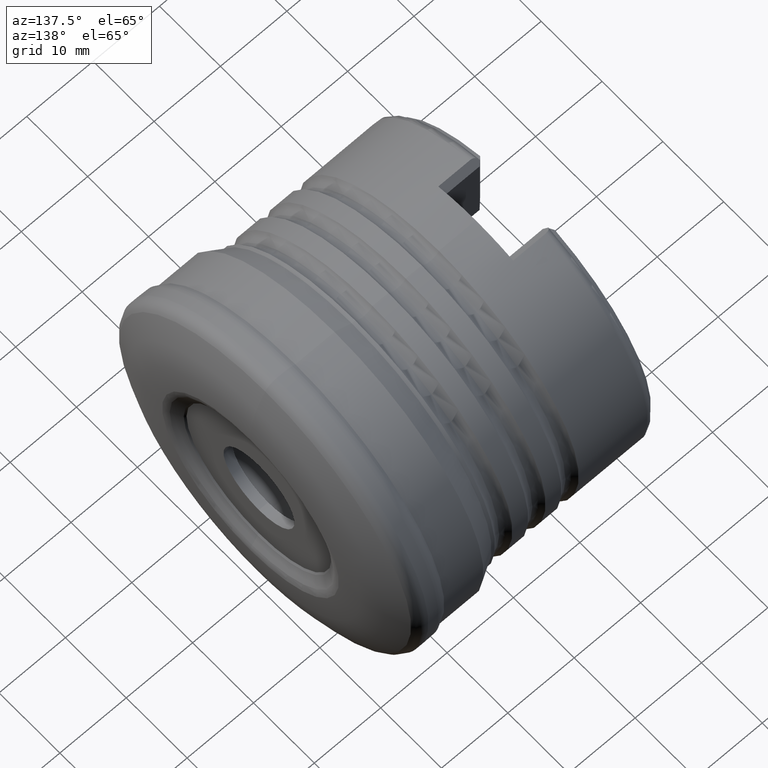
[diagram: clean part render]
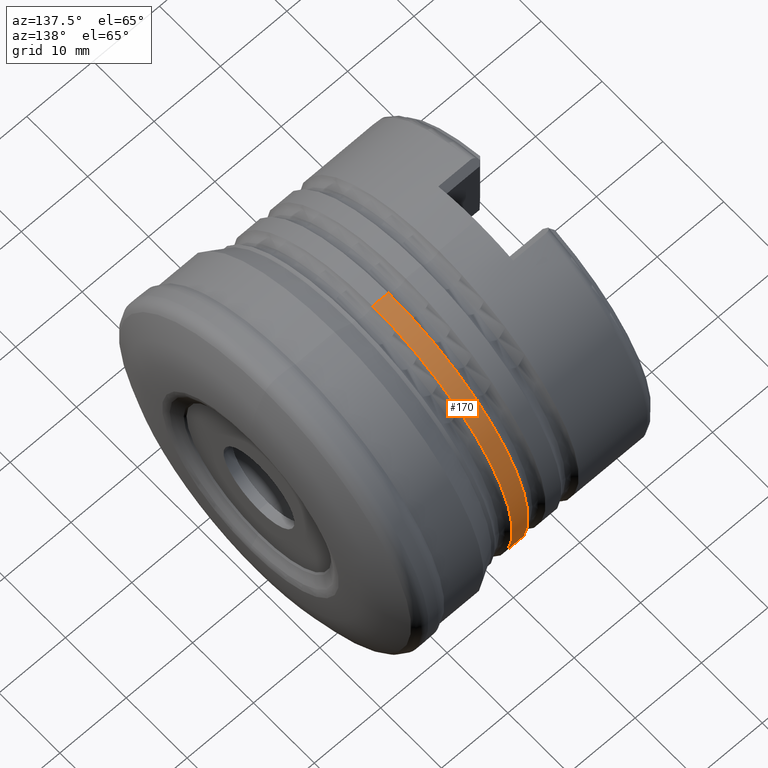
[diagram: same view with one face highlighted and labeled with its STEP entity id]
A machine part, auxiliary view. The second image highlights one B-rep face of the part: STEP entity #170.
In plain terms, the highlighted cylindrical surface (partial cylindrical patch) has radius 23 mm, axis along (1, -0, -0).
Its self-contained STEP definition (entity closure, byte-faithful):
#14 = EDGE_CURVE ( 'NONE', #2552, #401, #1649, .T. ) ;
#144 = AXIS2_PLACEMENT_3D ( 'NONE', #2404, #2484, #2489 ) ;
#170 = ADVANCED_FACE ( 'NONE', ( #1731 ), #1566, .T. ) ;
#234 = AXIS2_PLACEMENT_3D ( 'NONE', #518, #511, #570 ) ;
#319 = AXIS2_PLACEMENT_3D ( 'NONE', #823, #824, #825 ) ;
#401 = VERTEX_POINT ( 'NONE', #515 ) ;
#453 = DIRECTION ( 'NONE',  ( 1.000000000000000000, -0.0000000000000000000, -0.0000000000000000000 ) ) ;
#511 = DIRECTION ( 'NONE',  ( 1.000000000000000000, -0.0000000000000000000, -0.0000000000000000000 ) ) ;
#515 = CARTESIAN_POINT ( 'NONE',  ( -17.10000000000000100, 2.816687638038912400E-015, 22.99999999999999600 ) ) ;
#518 = CARTESIAN_POINT ( 'NONE',  ( -17.10000000000000100, 0.0000000000000000000, 0.0000000000000000000 ) ) ;
#570 = DIRECTION ( 'NONE',  ( 0.0000000000000000000, 0.0000000000000000000, -1.000000000000000000 ) ) ;
#823 = CARTESIAN_POINT ( 'NONE',  ( -19.50192378864667800, 0.0000000000000000000, 0.0000000000000000000 ) ) ;
#824 = DIRECTION ( 'NONE',  ( 1.000000000000000000, -0.0000000000000000000, -0.0000000000000000000 ) ) ;
#825 = DIRECTION ( 'NONE',  ( 0.0000000000000000000, 0.0000000000000000000, -1.000000000000000000 ) ) ;
#826 = CARTESIAN_POINT ( 'NONE',  ( 0.0000000000000000000, 0.0000000000000000000, -22.99999999999999600 ) ) ;
#1007 = CARTESIAN_POINT ( 'NONE',  ( -17.10000000000000100, 0.0000000000000000000, -22.99999999999999600 ) ) ;
#1013 = CARTESIAN_POINT ( 'NONE',  ( -19.50192378864667800, 2.816687638038912000E-015, 22.99999999999999600 ) ) ;
#1015 = CARTESIAN_POINT ( 'NONE',  ( -19.50192378864667800, 0.0000000000000000000, -22.99999999999999600 ) ) ;
#1209 = ORIENTED_EDGE ( 'NONE', *, *, #1983, .F. ) ;
#1477 = ORIENTED_EDGE ( 'NONE', *, *, #1993, .F. ) ;
#1495 = ORIENTED_EDGE ( 'NONE', *, *, #14, .T. ) ;
#1555 = VECTOR ( 'NONE', #1838, 1000.000000000000000 ) ;
#1558 = ORIENTED_EDGE ( 'NONE', *, *, #2315, .T. ) ;
#1566 = CYLINDRICAL_SURFACE ( 'NONE', #144, 22.99999999999999600 ) ;
#1596 = EDGE_LOOP ( 'NONE', ( #1558, #1495, #1477, #1209 ) ) ;
#1649 = LINE ( 'NONE', #1918, #1555 ) ;
#1731 = FACE_OUTER_BOUND ( 'NONE', #1596, .T. ) ;
#1838 = DIRECTION ( 'NONE',  ( 1.000000000000000000, -0.0000000000000000000, -0.0000000000000000000 ) ) ;
#1918 = CARTESIAN_POINT ( 'NONE',  ( 0.0000000000000000000, 2.816687638038912000E-015, 22.99999999999999600 ) ) ;
#1983 = EDGE_CURVE ( 'NONE', #2555, #2545, #2161, .T. ) ;
#1993 = EDGE_CURVE ( 'NONE', #2545, #401, #2221, .T. ) ;
#2161 = LINE ( 'NONE', #826, #2198 ) ;
#2198 = VECTOR ( 'NONE', #453, 1000.000000000000000 ) ;
#2221 = CIRCLE ( 'NONE', #234, 22.99999999999999600 ) ;
#2284 = CIRCLE ( 'NONE', #319, 22.99999999999999600 ) ;
#2315 = EDGE_CURVE ( 'NONE', #2555, #2552, #2284, .T. ) ;
#2404 = CARTESIAN_POINT ( 'NONE',  ( 0.0000000000000000000, 0.0000000000000000000, 0.0000000000000000000 ) ) ;
#2484 = DIRECTION ( 'NONE',  ( 1.000000000000000000, -0.0000000000000000000, -0.0000000000000000000 ) ) ;
#2489 = DIRECTION ( 'NONE',  ( 0.0000000000000000000, 0.0000000000000000000, -1.000000000000000000 ) ) ;
#2545 = VERTEX_POINT ( 'NONE', #1007 ) ;
#2552 = VERTEX_POINT ( 'NONE', #1013 ) ;
#2555 = VERTEX_POINT ( 'NONE', #1015 ) ;